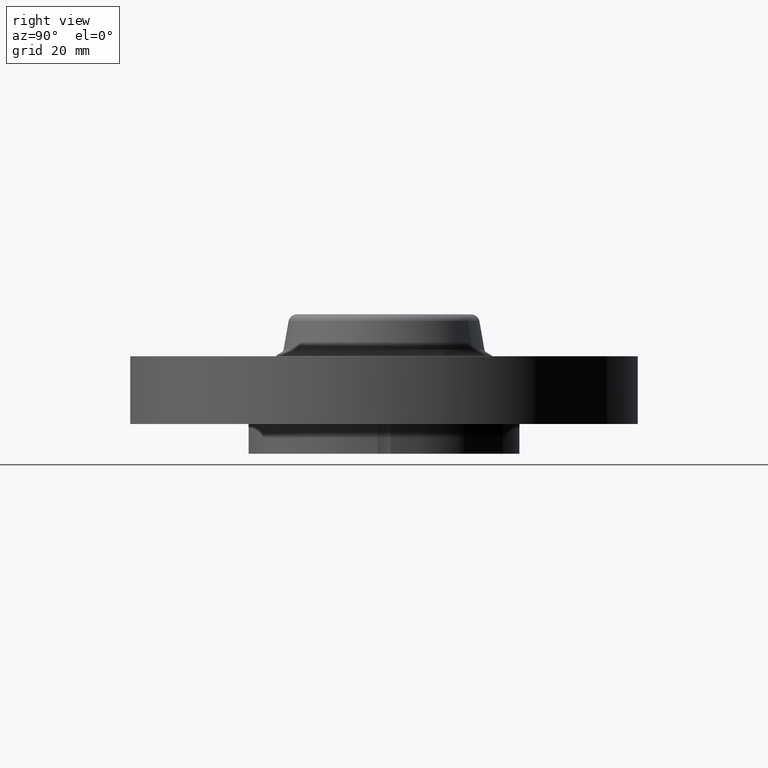
[diagram: clean part render]
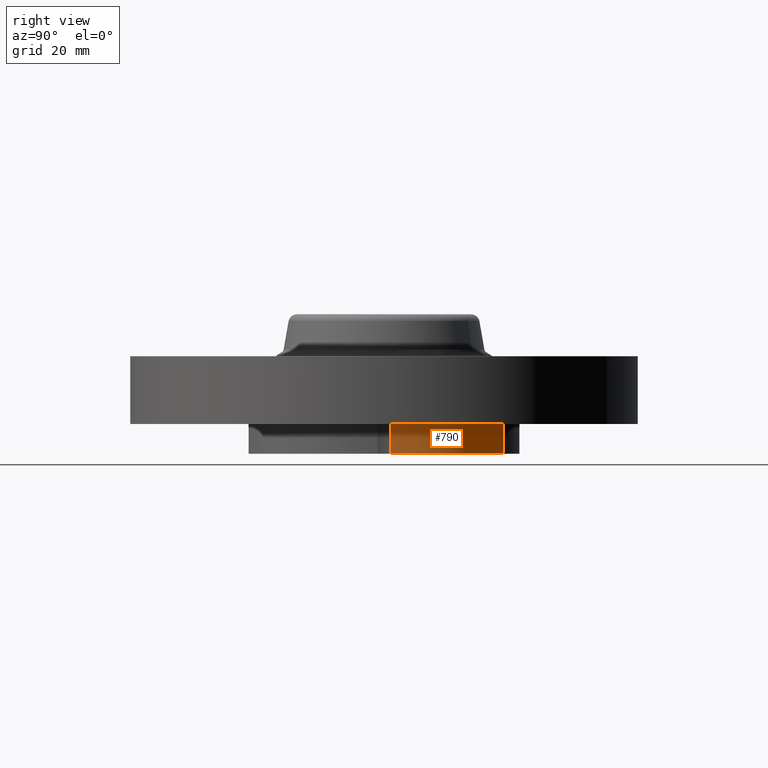
[diagram: same view with one face highlighted and labeled with its STEP entity id]
A machine part, right view. The second image highlights one B-rep face of the part: STEP entity #790.
In plain terms, the highlighted cylindrical surface (partial cylindrical patch) has radius 25.4 mm, axis along (0, 0, -1).
Its self-contained STEP definition (entity closure, byte-faithful):
#392=AXIS2_PLACEMENT_3D('Circle Axis2P3D',#390,#391,$) ;
#703=AXIS2_PLACEMENT_3D('Circle Axis2P3D',#701,#702,$) ;
#777=AXIS2_PLACEMENT_3D('Cylinder Axis2P3D',#774,#775,#776) ;
#387=CARTESIAN_POINT('Vertex',(0.479425538606,0.877582561894,-0.218800000001)) ;
#390=CARTESIAN_POINT('Axis2P3D Location',(0.,0.,-0.218800000001)) ;
#394=CARTESIAN_POINT('Vertex',(0.998807251912,0.0488269754871,-0.218800000001)) ;
#619=CARTESIAN_POINT('Line Origine',(0.998807251912,0.0488269754871,0.250000000001)) ;
#623=CARTESIAN_POINT('Vertex',(0.998807251912,0.0488269754871,0.)) ;
#701=CARTESIAN_POINT('Axis2P3D Location',(0.,0.,0.)) ;
#705=CARTESIAN_POINT('Vertex',(0.479425538606,0.877582561894,-3.49676543189E-017)) ;
#774=CARTESIAN_POINT('Axis2P3D Location',(0.,0.,0.295600000001)) ;
#779=CARTESIAN_POINT('Line Origine',(0.479425538606,0.877582561894,-0.1094)) ;
#391=DIRECTION('Axis2P3D Direction',(0.,0.,-0.0393700787402)) ;
#620=DIRECTION('Vector Direction',(0.,0.,-0.0393700787402)) ;
#702=DIRECTION('Axis2P3D Direction',(0.,0.,-0.0393700787402)) ;
#775=DIRECTION('Axis2P3D Direction',(0.,0.,-0.0393700787402)) ;
#776=DIRECTION('Axis2P3D XDirection',(0.00192232186956,0.0393231201539,0.)) ;
#780=DIRECTION('Vector Direction',(0.,0.,-0.0393700787402)) ;
#621=VECTOR('Line Direction',#620,0.0393700787402) ;
#781=VECTOR('Line Direction',#780,0.0393700787402) ;
#785=ORIENTED_EDGE('',*,*,#396,.F.) ;
#786=ORIENTED_EDGE('',*,*,#783,.T.) ;
#787=ORIENTED_EDGE('',*,*,#707,.T.) ;
#788=ORIENTED_EDGE('',*,*,#625,.T.) ;
#790=ADVANCED_FACE('PartBody',(#789),#778,.T.) ;
#393=CIRCLE('generated circle',#392,1.) ;
#704=CIRCLE('generated circle',#703,1.) ;
#778=CYLINDRICAL_SURFACE('generated cylinder',#777,1.) ;
#396=EDGE_CURVE('',#388,#395,#393,.T.) ;
#625=EDGE_CURVE('',#624,#395,#622,.T.) ;
#707=EDGE_CURVE('',#706,#624,#704,.T.) ;
#783=EDGE_CURVE('',#388,#706,#782,.F.) ;
#784=EDGE_LOOP('',(#785,#786,#787,#788)) ;
#789=FACE_OUTER_BOUND('',#784,.T.) ;
#622=LINE('Line',#619,#621) ;
#782=LINE('Line',#779,#781) ;
#388=VERTEX_POINT('',#387) ;
#395=VERTEX_POINT('',#394) ;
#624=VERTEX_POINT('',#623) ;
#706=VERTEX_POINT('',#705) ;